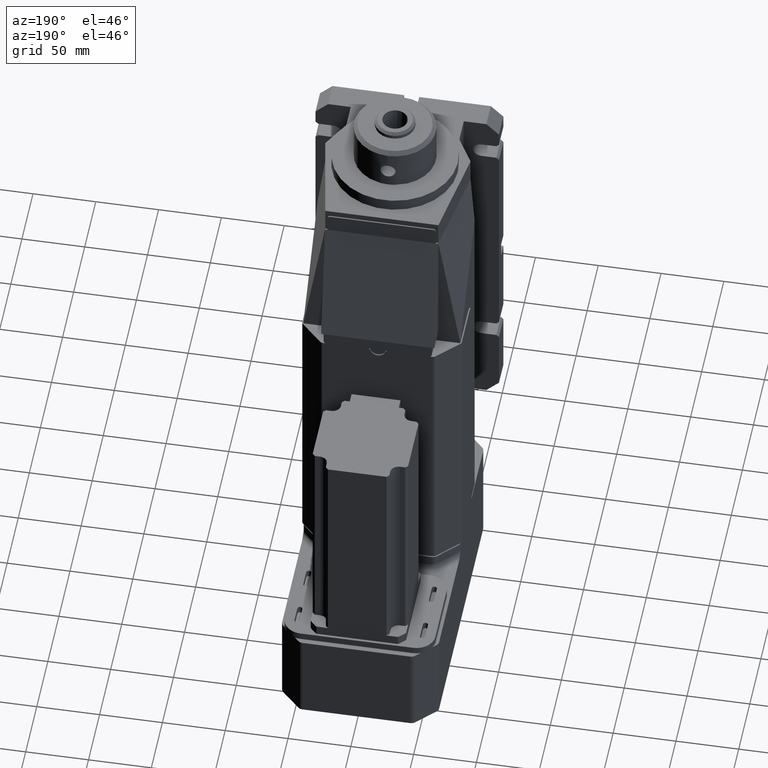
[diagram: clean part render]
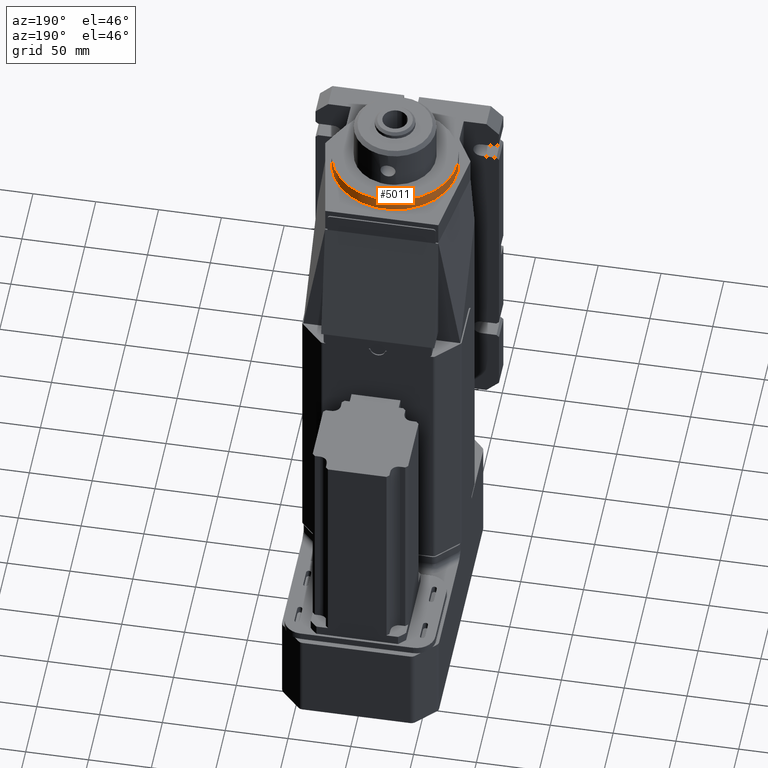
[diagram: same view with one face highlighted and labeled with its STEP entity id]
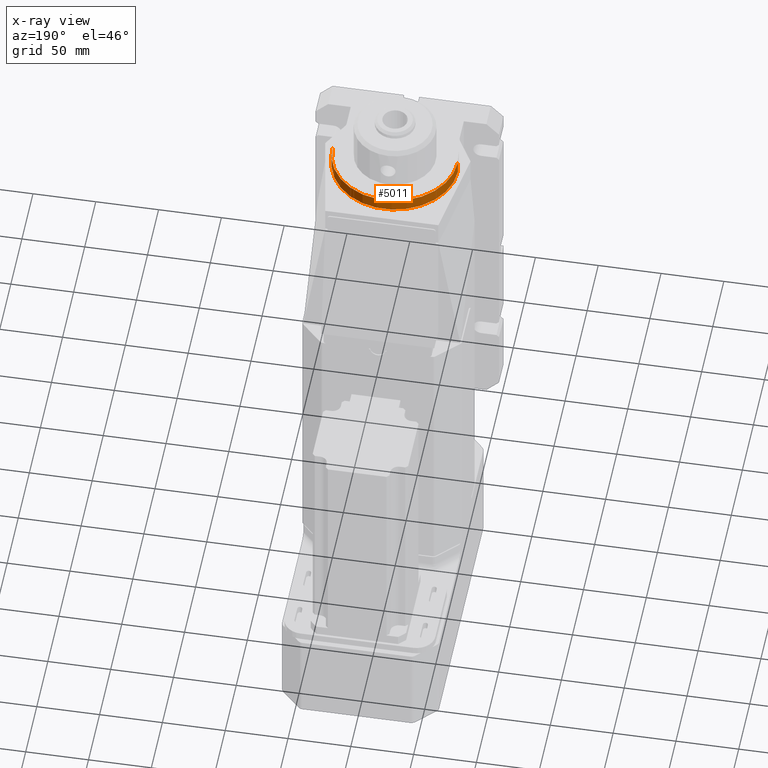
[diagram: x-ray of the same camera — body ghosted, the highlighted face saturated]
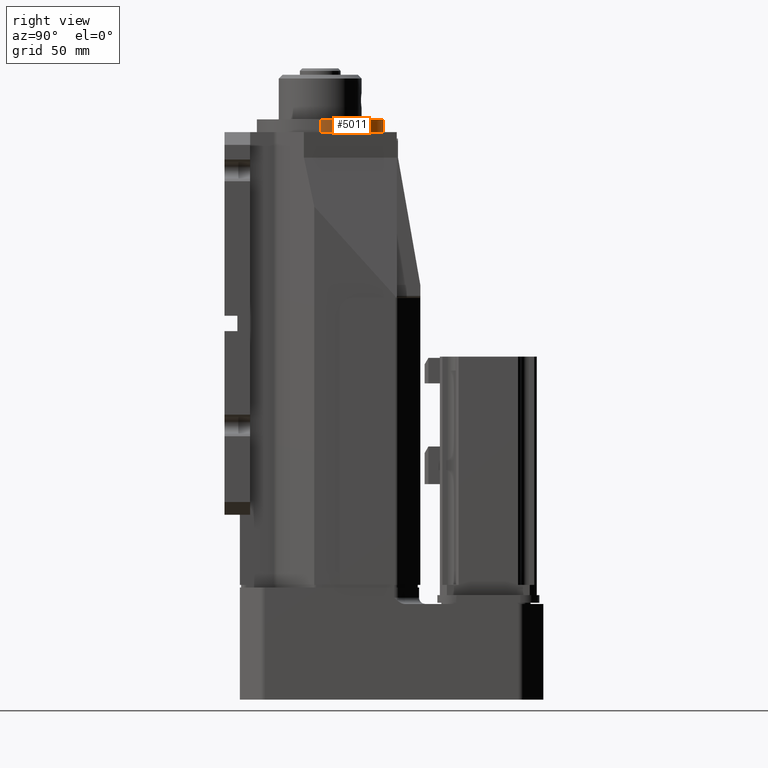
[diagram: same view with one face highlighted and labeled with its STEP entity id]
A machine part, auxiliary view. The second image highlights one B-rep face of the part: STEP entity #5011.
The next image is the same camera in x-ray: the body ghosted, the highlighted face saturated — about 0% of this face is hidden behind the body in this view.
A second angle (right view) of the same face is appended — the face is thin or edge-on in the first view.
In plain terms, the highlighted cylindrical surface (partial cylindrical patch) has radius 50 mm, axis along (0, 0, -1).
Its self-contained STEP definition (entity closure, byte-faithful):
#1616 = CIRCLE ( 'NONE', #1678, 50.00000000000000000 ) ;
#1617 = DIRECTION ( 'NONE',  ( -1.000000000000000000, 0.0000000000000000000, 0.0000000000000000000 ) ) ;
#1618 = DIRECTION ( 'NONE',  ( 0.0000000000000000000, 0.0000000000000000000, -1.000000000000000000 ) ) ;
#1619 = CARTESIAN_POINT ( 'NONE',  ( 0.0000000000000000000, 0.0000000000000000000, 362.0000000000000000 ) ) ;
#1620 = AXIS2_PLACEMENT_3D ( 'NONE', #1619, #1618, #1617 ) ;
#1621 = CYLINDRICAL_SURFACE ( 'NONE', #1620, 50.00000000000000000 ) ;
#1622 = CARTESIAN_POINT ( 'NONE',  ( 0.0000000000000000000, 0.0000000000000000000, 367.0000000000000000 ) ) ;
#1623 = FACE_OUTER_BOUND ( 'NONE', #5012, .T. ) ;
#1659 = DIRECTION ( 'NONE',  ( 0.0000000000000000000, 0.0000000000000000000, -1.000000000000000000 ) ) ;
#1660 = VECTOR ( 'NONE', #1659, 1000.000000000000000 ) ;
#1661 = CARTESIAN_POINT ( 'NONE',  ( -50.00000000000000000, 0.0000000000000000000, 362.0000000000000000 ) ) ;
#1662 = LINE ( 'NONE', #1661, #1660 ) ;
#1663 = CARTESIAN_POINT ( 'NONE',  ( -50.00000000000000000, 0.0000000000000000000, 357.0000000000000000 ) ) ;
#1664 = DIRECTION ( 'NONE',  ( -1.000000000000000000, 0.0000000000000000000, 0.0000000000000000000 ) ) ;
#1665 = DIRECTION ( 'NONE',  ( 0.0000000000000000000, 0.0000000000000000000, 1.000000000000000000 ) ) ;
#1666 = CARTESIAN_POINT ( 'NONE',  ( 0.0000000000000000000, 0.0000000000000000000, 357.0000000000000000 ) ) ;
#1667 = AXIS2_PLACEMENT_3D ( 'NONE', #1666, #1665, #1664 ) ;
#1668 = CIRCLE ( 'NONE', #1667, 50.00000000000000000 ) ;
#1669 = CARTESIAN_POINT ( 'NONE',  ( 50.00000000000000000, 6.123233995736766100E-015, 357.0000000000000000 ) ) ;
#1670 = DIRECTION ( 'NONE',  ( 0.0000000000000000000, 0.0000000000000000000, -1.000000000000000000 ) ) ;
#1671 = VECTOR ( 'NONE', #1670, 1000.000000000000000 ) ;
#1672 = CARTESIAN_POINT ( 'NONE',  ( 50.00000000000000000, 6.123233995736766100E-015, 362.0000000000000000 ) ) ;
#1673 = LINE ( 'NONE', #1672, #1671 ) ;
#1674 = CARTESIAN_POINT ( 'NONE',  ( 50.00000000000000000, 6.123233995736766100E-015, 367.0000000000000000 ) ) ;
#1675 = CARTESIAN_POINT ( 'NONE',  ( -50.00000000000000000, 0.0000000000000000000, 367.0000000000000000 ) ) ;
#1676 = DIRECTION ( 'NONE',  ( -1.000000000000000000, 0.0000000000000000000, 0.0000000000000000000 ) ) ;
#1677 = DIRECTION ( 'NONE',  ( 0.0000000000000000000, 0.0000000000000000000, -1.000000000000000000 ) ) ;
#1678 = AXIS2_PLACEMENT_3D ( 'NONE', #1622, #1677, #1676 ) ;
#5011 = ADVANCED_FACE ( 'NONE', ( #1623 ), #1621, .T. ) ;
#5012 = EDGE_LOOP ( 'NONE', ( #5013, #5017, #5020, #5023 ) ) ;
#5013 = ORIENTED_EDGE ( 'NONE', *, *, #5014, .T. ) ;
#5014 = EDGE_CURVE ( 'NONE', #5015, #5016, #1616, .T. ) ;
#5015 = VERTEX_POINT ( 'NONE', #1675 ) ;
#5016 = VERTEX_POINT ( 'NONE', #1674 ) ;
#5017 = ORIENTED_EDGE ( 'NONE', *, *, #5018, .T. ) ;
#5018 = EDGE_CURVE ( 'NONE', #5016, #5019, #1673, .T. ) ;
#5019 = VERTEX_POINT ( 'NONE', #1669 ) ;
#5020 = ORIENTED_EDGE ( 'NONE', *, *, #5021, .T. ) ;
#5021 = EDGE_CURVE ( 'NONE', #5019, #5022, #1668, .T. ) ;
#5022 = VERTEX_POINT ( 'NONE', #1663 ) ;
#5023 = ORIENTED_EDGE ( 'NONE', *, *, #5024, .F. ) ;
#5024 = EDGE_CURVE ( 'NONE', #5015, #5022, #1662, .T. ) ;